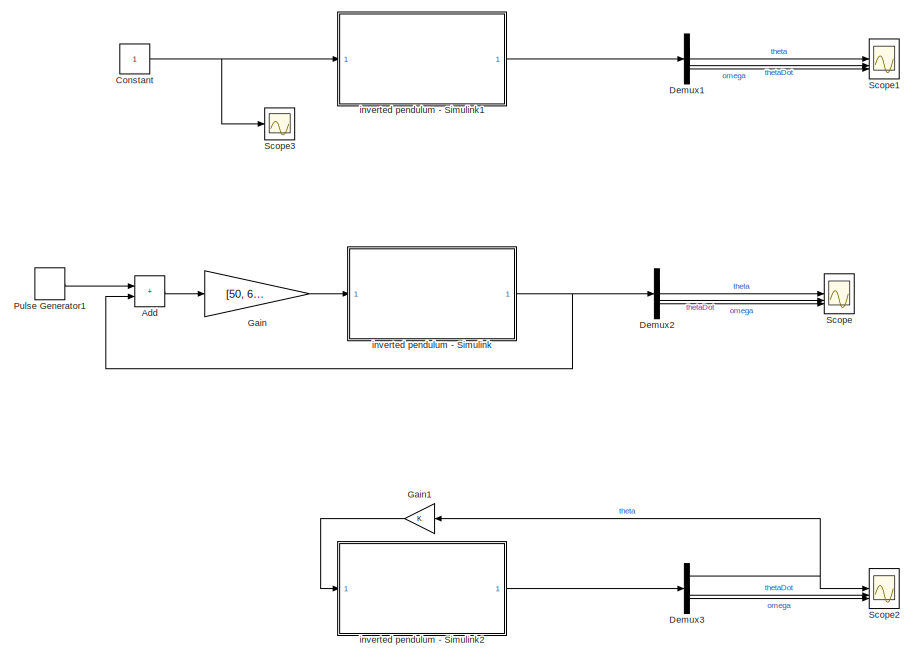
[diagram: root canvas - part 1/2, left side, full height]
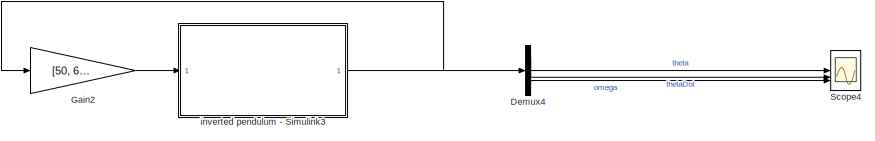
[diagram: root canvas - part 2/2, middle right region]
MODEL slx_288853958e78
KIND model
CONFIG AbsTol = auto
CONFIG EnableMultiTasking = on
CONFIG FixedStep = auto
CONFIG MaxStep = auto
CONFIG MinStep = auto
CONFIG RelTol = 1e-3
CONFIG SampleTimeConstraint = Unconstrained
CONFIG SolverName = VariableStepAuto
CONFIG StartTime = 0.0
CONFIG StopTime = 10
BLOCK [Sum] Add
  IconShape = rectangular
BLOCK [Constant] Constant
BLOCK [Demux] Demux1
  Outputs = 3
BLOCK [Demux] Demux2
  Outputs = 3
BLOCK [Demux] Demux3
  Outputs = 3
BLOCK [Demux] Demux4
  Outputs = 3
BLOCK [Gain] Gain
  Gain = [50,  6,  0.05]
  Multiplication = Matrix(K*u)
BLOCK [Gain] Gain1
  NameLocation = top
BLOCK [Gain] Gain2
  Gain = [50,  6,  0.05]
  Multiplication = Matrix(K*u)
BLOCK [DiscretePulseGenerator] Pulse Generator1
  Amplitude = 0.5
  Period = 5
  PulseType = Time based
  PulseWidth = 5
BLOCK [Scope] Scope
  Floating = off
  NumInputPorts = 3
  ScopeSpecificationString = Simulink.scopes.TimeScopeBlockCfg('CurrentConfiguration', extmgr.ConfigurationSet(extmgr.Configuration('Core','General UI',true),extmgr.Configuration('Core','Source UI',true),extmgr.Configuration('Sources','WiredSimulink',true),extmgr.Configuration('Visuals','Time Domain',true,'SerializedDisplays',{struct('MinYLimReal','-0.68388','MaxYLimReal','1.23954','YLabelReal','','MinYLimMag','0.00000','MaxY...<+2690ch>
BLOCK [Scope] Scope1
  Floating = off
  NumInputPorts = 3
  ScopeSpecificationString = Simulink.scopes.TimeScopeBlockCfg('CurrentConfiguration', extmgr.ConfigurationSet(extmgr.Configuration('Core','General UI',true),extmgr.Configuration('Core','Source UI',true),extmgr.Configuration('Sources','WiredSimulink',true,'DataLoggingVariableName','ScopeData1'),extmgr.Configuration('Visuals','Time Domain',true,'SerializedDisplays',{struct('MinYLimReal','-4771.33525','MaxYLimReal','530.73014',...<+2760ch>
BLOCK [Scope] Scope2
  Floating = off
  NumInputPorts = 3
  ScopeSpecificationString = Simulink.scopes.TimeScopeBlockCfg('CurrentConfiguration', extmgr.ConfigurationSet(extmgr.Configuration('Core','General UI',true),extmgr.Configuration('Core','Source UI',true),extmgr.Configuration('Sources','WiredSimulink',true,'DataLoggingVariableName','ScopeData1'),extmgr.Configuration('Visuals','Time Domain',true,'SerializedDisplays',{struct('MinYLimReal','-1.309','MaxYLimReal','1.309','YLabelRe...<+2723ch>
BLOCK [Scope] Scope3
  Floating = off
  NumInputPorts = 1
  ScopeSpecificationString = Simulink.scopes.TimeScopeBlockCfg('CurrentConfiguration', extmgr.ConfigurationSet(extmgr.Configuration('Core','General UI',true),extmgr.Configuration('Core','Source UI',true),extmgr.Configuration('Sources','WiredSimulink',true,'DataLoggingVariableName','ScopeData2'),extmgr.Configuration('Visuals','Time Domain',true,'SerializedDisplays',{struct('MinYLimReal','0.99973','MaxYLimReal','1.00014','YLabe...<+1450ch>
BLOCK [Scope] Scope4
  Floating = off
  NumInputPorts = 3
  ScopeSpecificationString = Simulink.scopes.TimeScopeBlockCfg('CurrentConfiguration', extmgr.ConfigurationSet(extmgr.Configuration('Core','General UI',true),extmgr.Configuration('Core','Source UI',true),extmgr.Configuration('Sources','WiredSimulink',true,'DataLoggingVariableName','ScopeData1'),extmgr.Configuration('Visuals','Time Domain',true,'SerializedDisplays',{struct('MinYLimReal','-0.29119','MaxYLimReal','1.19591','YLab...<+2726ch>
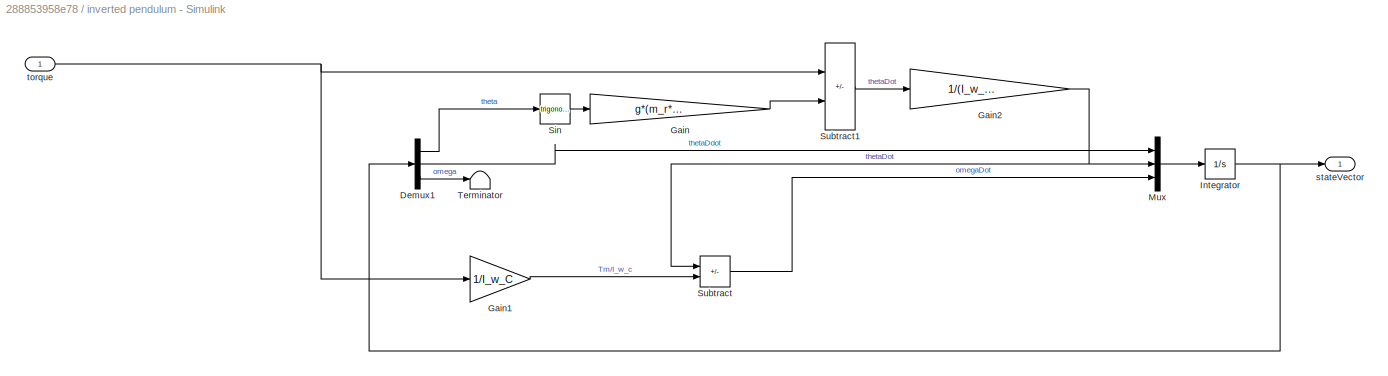
BLOCK [SubSystem] inverted pendulum - Simulink
BLOCK [Demux] inverted pendulum - Simulink/Demux1
  Outputs = 3
BLOCK [Gain] inverted pendulum - Simulink/Gain
  Gain = g*(m_r*l_AB+m_w*l_AC)
BLOCK [Gain] inverted pendulum - Simulink/Gain1
  Gain = 1/I_w_C
BLOCK [Gain] inverted pendulum - Simulink/Gain2
  Gain = 1/(I_w_A+I_r_A)
BLOCK [Integrator] inverted pendulum - Simulink/Integrator
  InitialCondition = [60*pi/180, 0,0]
BLOCK [Mux] inverted pendulum - Simulink/Mux
  DisplayOption = bar
  Inputs = 3
BLOCK [Trigonometry] inverted pendulum - Simulink/Sin
BLOCK [Sum] inverted pendulum - Simulink/Subtract
  IconShape = rectangular
  Inputs = -+
BLOCK [Sum] inverted pendulum - Simulink/Subtract1
  IconShape = rectangular
  Inputs = -+
BLOCK [Terminator] inverted pendulum - Simulink/Terminator
BLOCK [Outport] inverted pendulum - Simulink/stateVector
BLOCK [Inport] inverted pendulum - Simulink/torque
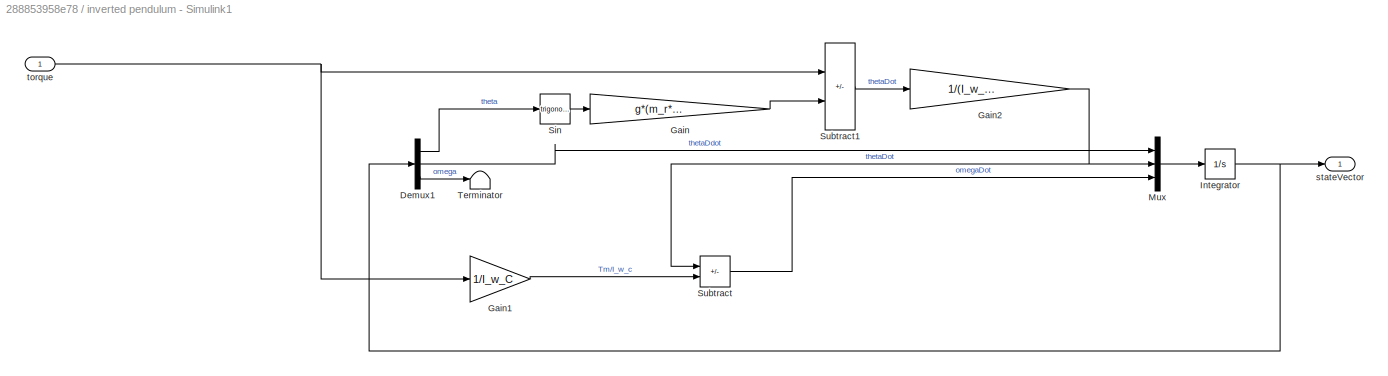
BLOCK [SubSystem] inverted pendulum - Simulink1
BLOCK [Demux] inverted pendulum - Simulink1/Demux1
  Outputs = 3
BLOCK [Gain] inverted pendulum - Simulink1/Gain
  Gain = g*(m_r*l_AB+m_w*l_AC)
BLOCK [Gain] inverted pendulum - Simulink1/Gain1
  Gain = 1/I_w_C
BLOCK [Gain] inverted pendulum - Simulink1/Gain2
  Gain = 1/(I_w_A+I_r_A)
BLOCK [Integrator] inverted pendulum - Simulink1/Integrator
  InitialCondition = [30*pi/180, 0,0]
BLOCK [Mux] inverted pendulum - Simulink1/Mux
  DisplayOption = bar
  Inputs = 3
BLOCK [Trigonometry] inverted pendulum - Simulink1/Sin
BLOCK [Sum] inverted pendulum - Simulink1/Subtract
  IconShape = rectangular
  Inputs = -+
BLOCK [Sum] inverted pendulum - Simulink1/Subtract1
  IconShape = rectangular
  Inputs = -+
BLOCK [Terminator] inverted pendulum - Simulink1/Terminator
BLOCK [Outport] inverted pendulum - Simulink1/stateVector
BLOCK [Inport] inverted pendulum - Simulink1/torque
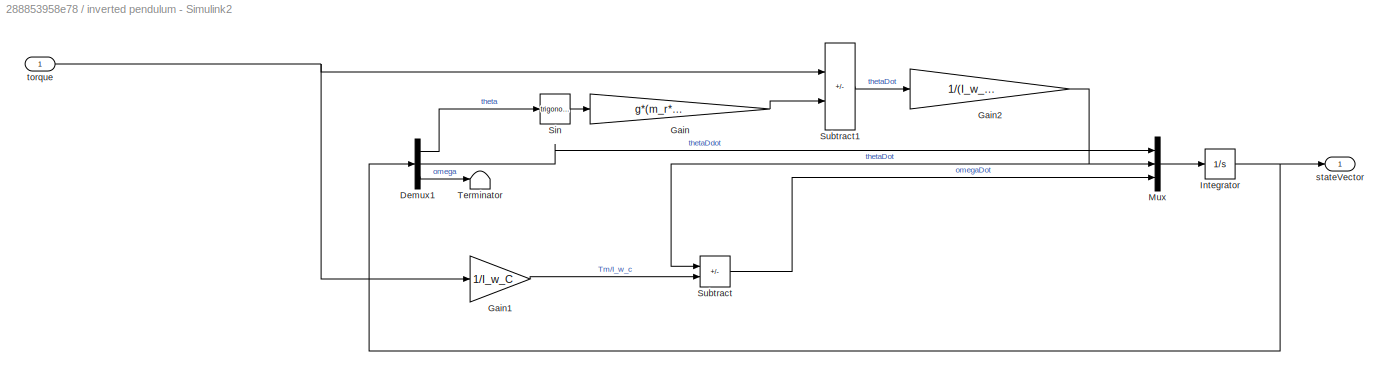
BLOCK [SubSystem] inverted pendulum - Simulink2
BLOCK [Demux] inverted pendulum - Simulink2/Demux1
  Outputs = 3
BLOCK [Gain] inverted pendulum - Simulink2/Gain
  Gain = g*(m_r*l_AB+m_w*l_AC)
BLOCK [Gain] inverted pendulum - Simulink2/Gain1
  Gain = 1/I_w_C
BLOCK [Gain] inverted pendulum - Simulink2/Gain2
  Gain = 1/(I_w_A+I_r_A)
BLOCK [Integrator] inverted pendulum - Simulink2/Integrator
  InitialCondition = [60*pi/180, 0,0]
BLOCK [Mux] inverted pendulum - Simulink2/Mux
  DisplayOption = bar
  Inputs = 3
BLOCK [Trigonometry] inverted pendulum - Simulink2/Sin
BLOCK [Sum] inverted pendulum - Simulink2/Subtract
  IconShape = rectangular
  Inputs = -+
BLOCK [Sum] inverted pendulum - Simulink2/Subtract1
  IconShape = rectangular
  Inputs = -+
BLOCK [Terminator] inverted pendulum - Simulink2/Terminator
BLOCK [Outport] inverted pendulum - Simulink2/stateVector
BLOCK [Inport] inverted pendulum - Simulink2/torque
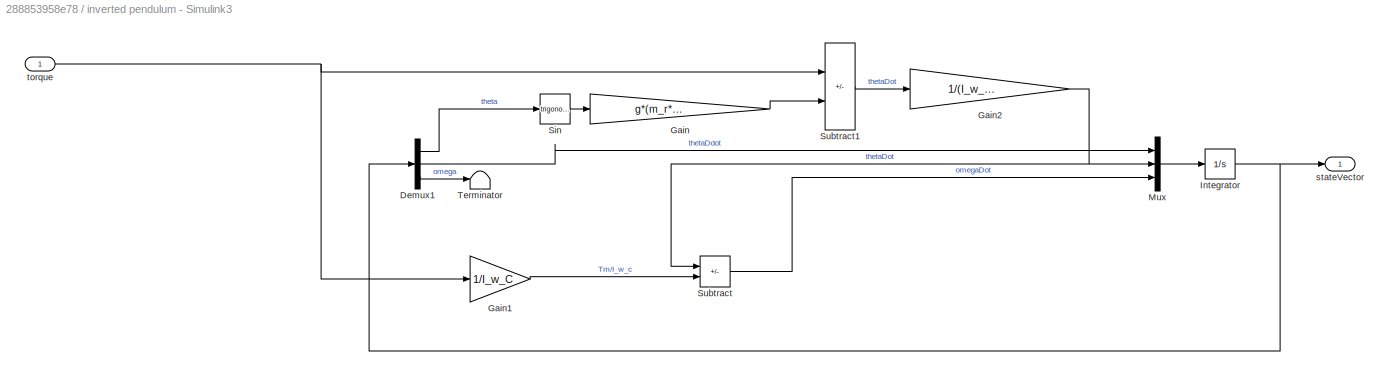
BLOCK [SubSystem] inverted pendulum - Simulink3
BLOCK [Demux] inverted pendulum - Simulink3/Demux1
  Outputs = 3
BLOCK [Gain] inverted pendulum - Simulink3/Gain
  Gain = g*(m_r*l_AB+m_w*l_AC)
BLOCK [Gain] inverted pendulum - Simulink3/Gain1
  Gain = 1/I_w_C
BLOCK [Gain] inverted pendulum - Simulink3/Gain2
  Gain = 1/(I_w_A+I_r_A)
BLOCK [Integrator] inverted pendulum - Simulink3/Integrator
  InitialCondition = [60*pi/180, 0,0]
BLOCK [Mux] inverted pendulum - Simulink3/Mux
  DisplayOption = bar
  Inputs = 3
BLOCK [Trigonometry] inverted pendulum - Simulink3/Sin
BLOCK [Sum] inverted pendulum - Simulink3/Subtract
  IconShape = rectangular
  Inputs = -+
BLOCK [Sum] inverted pendulum - Simulink3/Subtract1
  IconShape = rectangular
  Inputs = -+
BLOCK [Terminator] inverted pendulum - Simulink3/Terminator
BLOCK [Outport] inverted pendulum - Simulink3/stateVector
BLOCK [Inport] inverted pendulum - Simulink3/torque
LINE Add:1 -> Gain:1
NET Constant:1 -> Scope3:1, inverted pendulum - Simulink1:1
LINE Demux1:1 -> Scope1:1
LINE Demux1:2 -> Scope1:2
LINE Demux1:3 -> Scope1:3
LINE Demux2:1 -> Scope:1
LINE Demux2:2 -> Scope:2
LINE Demux2:3 -> Scope:3
NET Demux3:1 -> Gain1:1, Scope2:1
LINE Demux3:2 -> Scope2:2
LINE Demux3:3 -> Scope2:3
LINE Demux4:1 -> Scope4:1
LINE Demux4:2 -> Scope4:2
LINE Demux4:3 -> Scope4:3
LINE Gain1:1 -> inverted pendulum - Simulink2:1
LINE Gain2:1 -> inverted pendulum - Simulink3:1
LINE Gain:1 -> inverted pendulum - Simulink:1
LINE Pulse Generator1:1 -> Add:1
LINE inverted pendulum - Simulink/Demux1:1 -> inverted pendulum - Simulink/Sin:1
LINE inverted pendulum - Simulink/Demux1:2 -> inverted pendulum - Simulink/Mux:1
LINE inverted pendulum - Simulink/Demux1:3 -> inverted pendulum - Simulink/Terminator:1
LINE inverted pendulum - Simulink/Gain1:1 -> inverted pendulum - Simulink/Subtract:2
NET inverted pendulum - Simulink/Gain2:1 -> inverted pendulum - Simulink/Mux:2, inverted pendulum - Simulink/Subtract:1
LINE inverted pendulum - Simulink/Gain:1 -> inverted pendulum - Simulink/Subtract1:2
NET inverted pendulum - Simulink/Integrator:1 -> inverted pendulum - Simulink/Demux1:1, inverted pendulum - Simulink/stateVector:1
LINE inverted pendulum - Simulink/Mux:1 -> inverted pendulum - Simulink/Integrator:1
LINE inverted pendulum - Simulink/Sin:1 -> inverted pendulum - Simulink/Gain:1
LINE inverted pendulum - Simulink/Subtract1:1 -> inverted pendulum - Simulink/Gain2:1
LINE inverted pendulum - Simulink/Subtract:1 -> inverted pendulum - Simulink/Mux:3
NET inverted pendulum - Simulink/torque:1 -> inverted pendulum - Simulink/Gain1:1, inverted pendulum - Simulink/Subtract1:1
LINE inverted pendulum - Simulink1/Demux1:1 -> inverted pendulum - Simulink1/Sin:1
LINE inverted pendulum - Simulink1/Demux1:2 -> inverted pendulum - Simulink1/Mux:1
LINE inverted pendulum - Simulink1/Demux1:3 -> inverted pendulum - Simulink1/Terminator:1
LINE inverted pendulum - Simulink1/Gain1:1 -> inverted pendulum - Simulink1/Subtract:2
NET inverted pendulum - Simulink1/Gain2:1 -> inverted pendulum - Simulink1/Mux:2, inverted pendulum - Simulink1/Subtract:1
LINE inverted pendulum - Simulink1/Gain:1 -> inverted pendulum - Simulink1/Subtract1:2
NET inverted pendulum - Simulink1/Integrator:1 -> inverted pendulum - Simulink1/Demux1:1, inverted pendulum - Simulink1/stateVector:1
LINE inverted pendulum - Simulink1/Mux:1 -> inverted pendulum - Simulink1/Integrator:1
LINE inverted pendulum - Simulink1/Sin:1 -> inverted pendulum - Simulink1/Gain:1
LINE inverted pendulum - Simulink1/Subtract1:1 -> inverted pendulum - Simulink1/Gain2:1
LINE inverted pendulum - Simulink1/Subtract:1 -> inverted pendulum - Simulink1/Mux:3
NET inverted pendulum - Simulink1/torque:1 -> inverted pendulum - Simulink1/Gain1:1, inverted pendulum - Simulink1/Subtract1:1
LINE inverted pendulum - Simulink1:1 -> Demux1:1
LINE inverted pendulum - Simulink2/Demux1:1 -> inverted pendulum - Simulink2/Sin:1
LINE inverted pendulum - Simulink2/Demux1:2 -> inverted pendulum - Simulink2/Mux:1
LINE inverted pendulum - Simulink2/Demux1:3 -> inverted pendulum - Simulink2/Terminator:1
LINE inverted pendulum - Simulink2/Gain1:1 -> inverted pendulum - Simulink2/Subtract:2
NET inverted pendulum - Simulink2/Gain2:1 -> inverted pendulum - Simulink2/Mux:2, inverted pendulum - Simulink2/Subtract:1
LINE inverted pendulum - Simulink2/Gain:1 -> inverted pendulum - Simulink2/Subtract1:2
NET inverted pendulum - Simulink2/Integrator:1 -> inverted pendulum - Simulink2/Demux1:1, inverted pendulum - Simulink2/stateVector:1
LINE inverted pendulum - Simulink2/Mux:1 -> inverted pendulum - Simulink2/Integrator:1
LINE inverted pendulum - Simulink2/Sin:1 -> inverted pendulum - Simulink2/Gain:1
LINE inverted pendulum - Simulink2/Subtract1:1 -> inverted pendulum - Simulink2/Gain2:1
LINE inverted pendulum - Simulink2/Subtract:1 -> inverted pendulum - Simulink2/Mux:3
NET inverted pendulum - Simulink2/torque:1 -> inverted pendulum - Simulink2/Gain1:1, inverted pendulum - Simulink2/Subtract1:1
LINE inverted pendulum - Simulink2:1 -> Demux3:1
LINE inverted pendulum - Simulink3/Demux1:1 -> inverted pendulum - Simulink3/Sin:1
LINE inverted pendulum - Simulink3/Demux1:2 -> inverted pendulum - Simulink3/Mux:1
LINE inverted pendulum - Simulink3/Demux1:3 -> inverted pendulum - Simulink3/Terminator:1
LINE inverted pendulum - Simulink3/Gain1:1 -> inverted pendulum - Simulink3/Subtract:2
NET inverted pendulum - Simulink3/Gain2:1 -> inverted pendulum - Simulink3/Mux:2, inverted pendulum - Simulink3/Subtract:1
LINE inverted pendulum - Simulink3/Gain:1 -> inverted pendulum - Simulink3/Subtract1:2
NET inverted pendulum - Simulink3/Integrator:1 -> inverted pendulum - Simulink3/Demux1:1, inverted pendulum - Simulink3/stateVector:1
LINE inverted pendulum - Simulink3/Mux:1 -> inverted pendulum - Simulink3/Integrator:1
LINE inverted pendulum - Simulink3/Sin:1 -> inverted pendulum - Simulink3/Gain:1
LINE inverted pendulum - Simulink3/Subtract1:1 -> inverted pendulum - Simulink3/Gain2:1
LINE inverted pendulum - Simulink3/Subtract:1 -> inverted pendulum - Simulink3/Mux:3
NET inverted pendulum - Simulink3/torque:1 -> inverted pendulum - Simulink3/Gain1:1, inverted pendulum - Simulink3/Subtract1:1
NET inverted pendulum - Simulink3:1 -> Demux4:1, Gain2:1
NET inverted pendulum - Simulink:1 -> Add:2, Demux2:1
note: NET lines group one-source signal fan-out (src -> all destinations, sorted); 1:1 wires keep LINE
